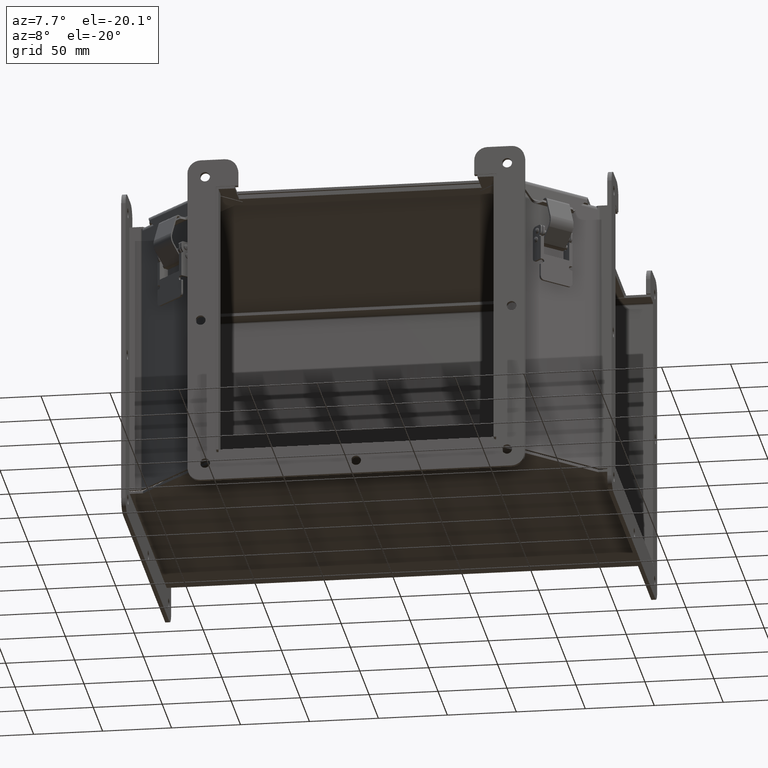
[diagram: clean part render]
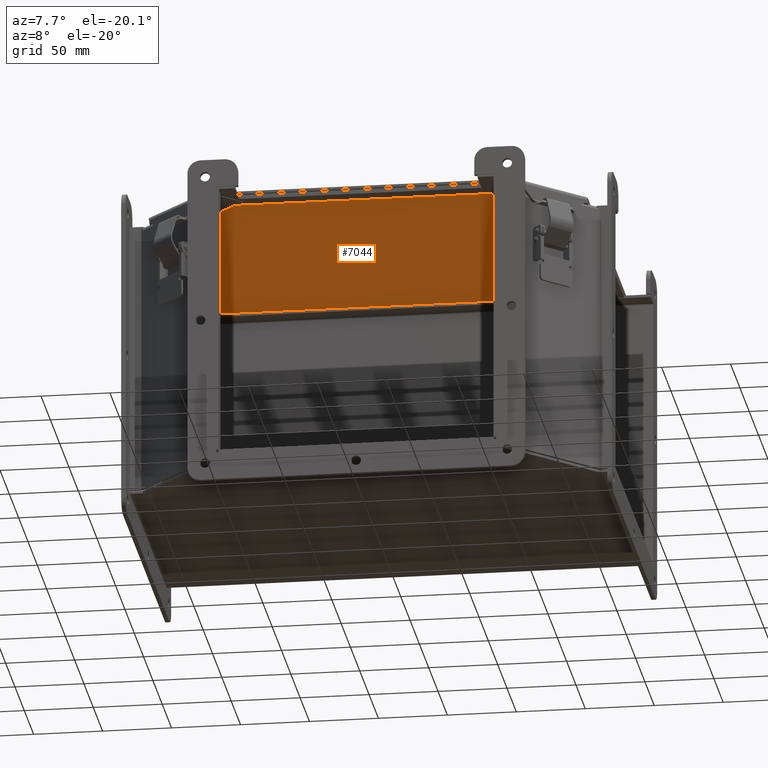
[diagram: same view with one face highlighted and labeled with its STEP entity id]
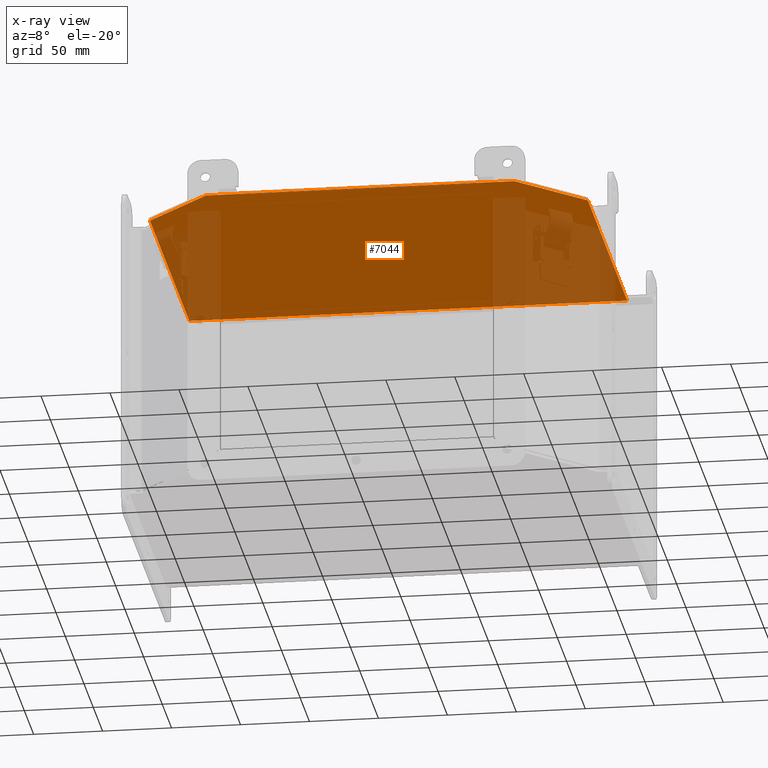
[diagram: x-ray of the same camera — body ghosted, the highlighted face saturated]
A machine part, auxiliary view. The second image highlights one B-rep face of the part: STEP entity #7044.
The next image is the same camera in x-ray: the body ghosted, the highlighted face saturated — about 30% of this face is hidden behind the body in this view.
In plain terms, the highlighted planar face has unit normal (0, -0, 1).
Its self-contained STEP definition (entity closure, byte-faithful):
#380=PLANE('',#7461);
#661=FACE_OUTER_BOUND('',#1045,.T.);
#1045=EDGE_LOOP('',(#5190,#5191,#5192,#5193,#5194,#5195));
#1849=LINE('',#10629,#2559);
#1855=LINE('',#10711,#2565);
#1858=LINE('',#10717,#2568);
#1862=LINE('',#10724,#2572);
#1876=LINE('',#10760,#2586);
#1877=LINE('',#10762,#2587);
#2559=VECTOR('',#8382,2.61529121268044);
#2565=VECTOR('',#8392,2.61529121268044);
#2568=VECTOR('',#8397,8.32670984873607);
#2572=VECTOR('',#8405,8.80141969747215);
#2586=VECTOR('',#8445,12.5);
#2587=VECTOR('',#8448,8.32670984873607);
#3209=VERTEX_POINT('',#10588);
#3210=VERTEX_POINT('',#10617);
#3215=VERTEX_POINT('',#10670);
#3216=VERTEX_POINT('',#10699);
#3219=VERTEX_POINT('',#10715);
#3228=VERTEX_POINT('',#10749);
#3945=EDGE_CURVE('',#3210,#3209,#1849,.T.);
#3955=EDGE_CURVE('',#3216,#3215,#1855,.T.);
#3958=EDGE_CURVE('',#3219,#3209,#1858,.T.);
#3962=EDGE_CURVE('',#3210,#3215,#1862,.T.);
#3980=EDGE_CURVE('',#3219,#3228,#1876,.T.);
#3981=EDGE_CURVE('',#3216,#3228,#1877,.T.);
#5190=ORIENTED_EDGE('',*,*,#3945,.T.);
#5191=ORIENTED_EDGE('',*,*,#3958,.F.);
#5192=ORIENTED_EDGE('',*,*,#3980,.T.);
#5193=ORIENTED_EDGE('',*,*,#3981,.F.);
#5194=ORIENTED_EDGE('',*,*,#3955,.T.);
#5195=ORIENTED_EDGE('',*,*,#3962,.F.);
#7044=ADVANCED_FACE('',(#661),#380,.F.);
#7461=AXIS2_PLACEMENT_3D('',#10763,#8449,#8450);
#8382=DIRECTION('',(-0.707106781186548,0.707106781186547,0.));
#8392=DIRECTION('',(-0.707106781186548,-0.707106781186547,0.));
#8397=DIRECTION('',(0.,-1.,0.));
#8405=DIRECTION('',(1.,0.,0.));
#8445=DIRECTION('',(1.,0.,0.));
#8448=DIRECTION('',(0.,1.,0.));
#8449=DIRECTION('center_axis',(0.,0.,1.));
#8450=DIRECTION('ref_axis',(0.707106781186548,0.707106781186548,0.));
#10588=CARTESIAN_POINT('',(-6.25,-3.30695984873607,0.));
#10617=CARTESIAN_POINT('',(-4.40070984873607,-5.15625,0.));
#10629=CARTESIAN_POINT('',(-5.57800120962624,-3.97895863910983,0.));
#10670=CARTESIAN_POINT('',(4.40070984873607,-5.15625,0.));
#10699=CARTESIAN_POINT('',(6.25,-3.30695984873607,0.));
#10711=CARTESIAN_POINT('',(4.65335613399428,-4.90360371474179,0.));
#10715=CARTESIAN_POINT('',(-6.25,5.01975,0.));
#10717=CARTESIAN_POINT('',(-6.25,5.15625,0.));
#10724=CARTESIAN_POINT('',(-6.25,-5.15625,0.));
#10749=CARTESIAN_POINT('',(6.25,5.01975,0.));
#10760=CARTESIAN_POINT('',(3.125,5.01975,0.));
#10762=CARTESIAN_POINT('',(6.25,-5.15625,0.));
#10763=CARTESIAN_POINT('Origin',(-4.59377377061421,-5.15627377061422,0.));